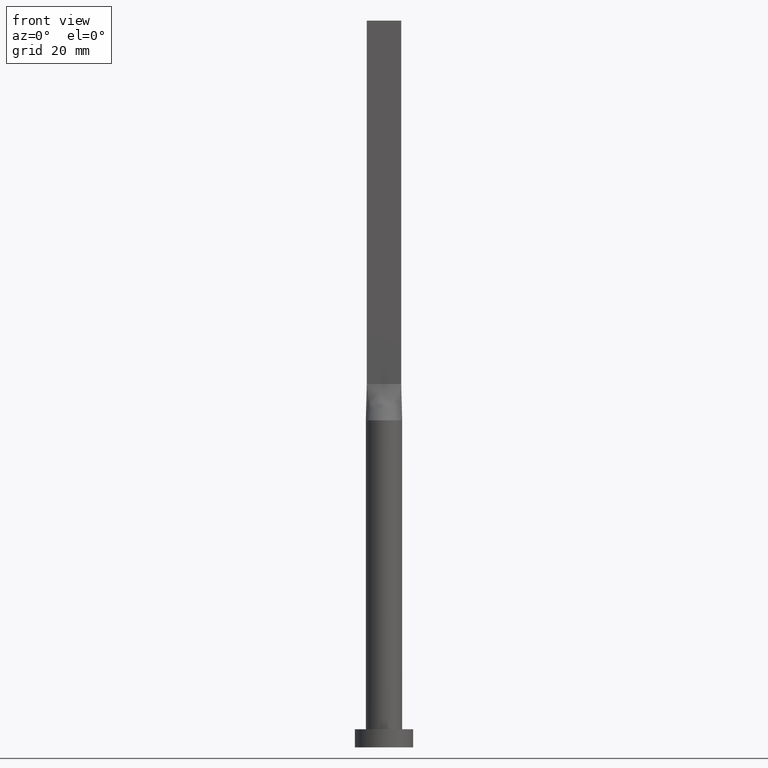
[diagram: clean part render]
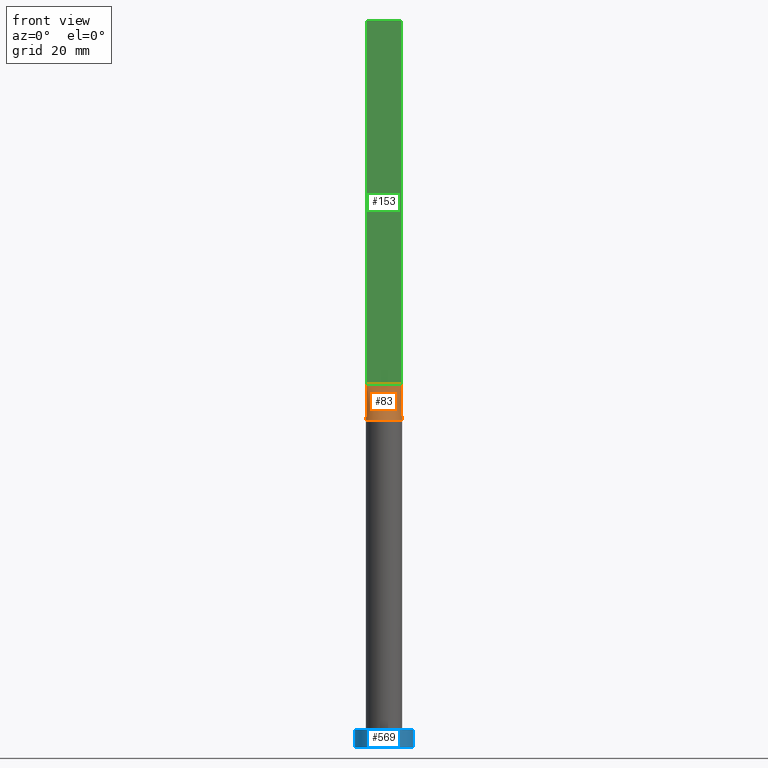
[diagram: same view with three faces highlighted in distinct colors, each labeled with its STEP entity id]
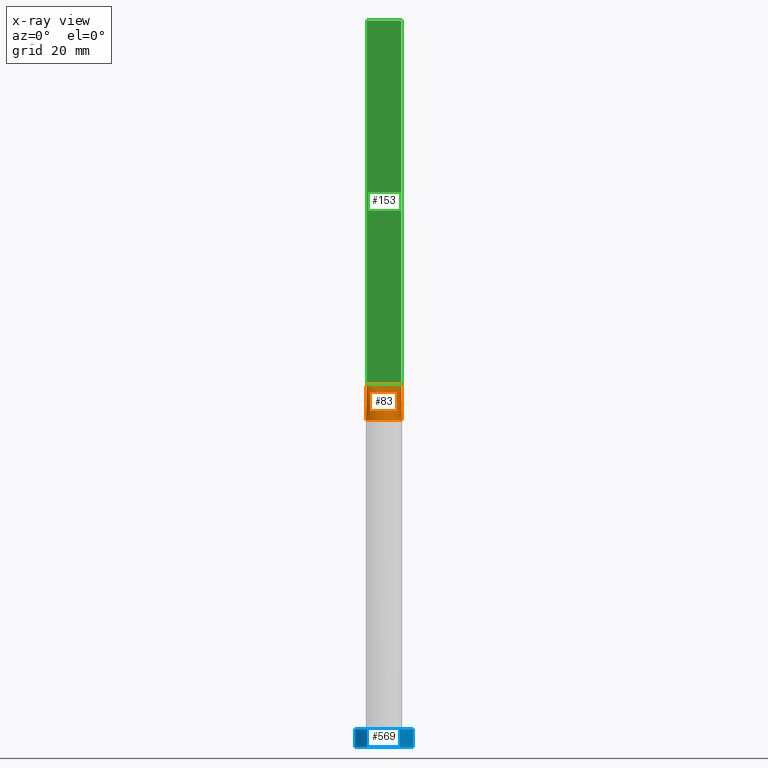
[diagram: x-ray of the same camera — body ghosted, the three highlighted faces saturated]
A machine part, front view with three faces highlighted in distinct colors.
The next image is the same camera in x-ray (body ghosted, the three faces saturated) — at least one of them is partly hidden behind the body in this view.
Their STEP definitions:

[orange] entity #83 — the highlighted face is a freeform B-spline surface patch.
#6 = CARTESIAN_POINT ( 'NONE',  ( -4.753727492665065668, -1.629988260829201119, 90.00000000000002842 ) ) ;
#10 = CARTESIAN_POINT ( 'NONE',  ( -0.3560391241594598188, -5.000000000000001776, 90.00000000000002842 ) ) ;
#12 = CARTESIAN_POINT ( 'NONE',  ( -3.404830936252120299, -3.673931880027065056, 90.00000000000002842 ) ) ;
#16 = CARTESIAN_POINT ( 'NONE',  ( -2.643217737595827010, -4.256483892511436551, 90.00000000000000000 ) ) ;
#17 = ORIENTED_EDGE ( 'NONE', *, *, #41, .T. ) ;
#29 = CARTESIAN_POINT ( 'NONE',  ( 4.753727492665065668, -1.629988260829203561, 90.00000000000004263 ) ) ;
#33 = VERTEX_POINT ( 'NONE', #446 ) ;
#35 = CARTESIAN_POINT ( 'NONE',  ( 3.166666666666673180, -0.7499999999999997780, 100.0000000000000000 ) ) ;
#38 = CARTESIAN_POINT ( 'NONE',  ( -4.938821632323166178, -0.7798139456827060112, 90.00000000000001421 ) ) ;
#41 = EDGE_CURVE ( 'NONE', #33, #248, #155, .T. ) ;
#48 = LINE ( 'NONE', #427, #591 ) ;
#53 = CARTESIAN_POINT ( 'NONE',  ( -4.938814826645345768, -0.7798128673650532861, 90.00000000000001421 ) ) ;
#56 = CARTESIAN_POINT ( 'NONE',  ( -0.7119876437238014111, -4.961551549233179870, 90.00000000000002842 ) ) ;
#58 = CARTESIAN_POINT ( 'NONE',  ( -4.874625637456154514, -1.186344398896584718, 90.00000000000004263 ) ) ;
#61 = CARTESIAN_POINT ( 'NONE',  ( 1.400150253878312157, -4.812847332616943419, 90.00000000000001421 ) ) ;
#67 = FACE_OUTER_BOUND ( 'NONE', #560, .T. ) ;
#69 = VERTEX_POINT ( 'NONE', #526 ) ;
#74 = CARTESIAN_POINT ( 'NONE',  ( 2.353781608410061121, -4.424438117685769889, 90.00000000000000000 ) ) ;
#75 = CIRCLE ( 'NONE', #193, 5.000000000000000000 ) ;
#83 = ADVANCED_FACE ( 'NONE', ( #67 ), #428, .T. ) ;
#86 = CARTESIAN_POINT ( 'NONE',  ( 4.874625637456156291, -1.186344398896586938, 90.00000000000001421 ) ) ;
#99 = LINE ( 'NONE', #508, #144 ) ;
#112 = CARTESIAN_POINT ( 'NONE',  ( 0.1979166666666740126, -0.7499999999999994449, 100.0000000000000000 ) ) ;
#116 = CARTESIAN_POINT ( 'NONE',  ( 4.844407413322673328, -0.7649064336825285304, 95.00000000000000000 ) ) ;
#129 = CARTESIAN_POINT ( 'NONE',  ( 2.177083333333341475, -0.7499999999999997780, 100.0000000000000000 ) ) ;
#144 = VECTOR ( 'NONE', #518, 1000.000000000000114 ) ;
#151 = CARTESIAN_POINT ( 'NONE',  ( -4.750000000000000000, -0.7499999999999991118, 100.0000000000000000 ) ) ;
#155 = LINE ( 'NONE', #116, #550 ) ;
#158 = CARTESIAN_POINT ( 'NONE',  ( -0.7916666666666584140, -0.7499999999999995559, 100.0000000000000000 ) ) ;
#160 = CARTESIAN_POINT ( 'NONE',  ( 1.732223102076449583, -4.702695359254404295, 90.00000000000000000 ) ) ;
#163 = CARTESIAN_POINT ( 'NONE',  ( -2.770833333333329040, -0.7499999999999994449, 100.0000000000000284 ) ) ;
#164 = ORIENTED_EDGE ( 'NONE', *, *, #223, .T. ) ;
#167 = CARTESIAN_POINT ( 'NONE',  ( 4.750000000000000000, -0.7499999999999997780, 100.0000000000000000 ) ) ;
#178 = CARTESIAN_POINT ( 'NONE',  ( 4.354166666666667851, -0.7499999999999997780, 100.0000000000000000 ) ) ;
#191 = EDGE_CURVE ( 'NONE', #229, #33, #75, .T. ) ;
#193 = AXIS2_PLACEMENT_3D ( 'NONE', #496, #257, #501 ) ;
#198 = DIRECTION ( 'NONE',  ( -0.01887803397728733332, 0.002980742206940388637, 0.9998173508241633423 ) ) ;
#200 = CARTESIAN_POINT ( 'NONE',  ( -0.1979166666666593299, -0.7499999999999994449, 100.0000000000000000 ) ) ;
#207 = CARTESIAN_POINT ( 'NONE',  ( -2.177083333333327708, -0.7499999999999995559, 100.0000000000000284 ) ) ;
#218 = EDGE_CURVE ( 'NONE', #69, #248, #48, .T. ) ;
#223 = EDGE_CURVE ( 'NONE', #69, #229, #99, .T. ) ;
#224 = CARTESIAN_POINT ( 'NONE',  ( 3.404830936252118967, -3.673931880027069496, 90.00000000000002842 ) ) ;
#229 = VERTEX_POINT ( 'NONE', #38 ) ;
#246 = CARTESIAN_POINT ( 'NONE',  ( -0.3958333333333254322, -0.7499999999999995559, 100.0000000000000000 ) ) ;
#248 = VERTEX_POINT ( 'NONE', #422 ) ;
#250 = CARTESIAN_POINT ( 'NONE',  ( -1.732223102076450250, -4.702695359254402518, 90.00000000000001421 ) ) ;
#255 = CARTESIAN_POINT ( 'NONE',  ( 2.643217737595827455, -4.256483892511438327, 90.00000000000001421 ) ) ;
#257 = DIRECTION ( 'NONE',  ( 0.000000000000000000, 0.000000000000000000, 1.000000000000000000 ) ) ;
#264 = CARTESIAN_POINT ( 'NONE',  ( 3.958333333333336146, -0.7499999999999997780, 100.0000000000000000 ) ) ;
#290 = CARTESIAN_POINT ( 'NONE',  ( -1.583333333333326376, -0.7499999999999995559, 100.0000000000000284 ) ) ;
#293 = CARTESIAN_POINT ( 'NONE',  ( -4.354166666666666075, -0.7499999999999992228, 100.0000000000000142 ) ) ;
#295 = CARTESIAN_POINT ( 'NONE',  ( 0.7119876437238003009, -4.961551549233181646, 90.00000000000001421 ) ) ;
#303 = CARTESIAN_POINT ( 'NONE',  ( -1.979166666666660745, -0.7499999999999995559, 100.0000000000000284 ) ) ;
#308 = CARTESIAN_POINT ( 'NONE',  ( 2.770833333333341031, -0.7499999999999997780, 100.0000000000000000 ) ) ;
#337 = CARTESIAN_POINT ( 'NONE',  ( -4.332026455536839293, -2.547220758687717801, 90.00000000000005684 ) ) ;
#343 = CARTESIAN_POINT ( 'NONE',  ( 0.3560391241594588196, -5.000000000000000888, 90.00000000000002842 ) ) ;
#345 = CARTESIAN_POINT ( 'NONE',  ( -3.958333333333332149, -0.7499999999999993339, 100.0000000000000142 ) ) ;
#353 = CARTESIAN_POINT ( 'NONE',  ( 4.938814826645345768, -0.7798128673650571718, 90.00000000000001421 ) ) ;
#393 = CARTESIAN_POINT ( 'NONE',  ( -2.353781608410061121, -4.424438117685769889, 89.99999999999998579 ) ) ;
#420 = ORIENTED_EDGE ( 'NONE', *, *, #191, .T. ) ;
#422 = CARTESIAN_POINT ( 'NONE',  ( 4.750000000000000000, -0.7499999999999997780, 100.0000000000000000 ) ) ;
#424 = DIRECTION ( 'NONE',  ( 1.000000000000000000, -6.847592668329501559E-17, 0.000000000000000000 ) ) ;
#427 = CARTESIAN_POINT ( 'NONE',  ( -4.750000000000000000, -0.7499999999999991118, 100.0000000000000000 ) ) ;
#428 = B_SPLINE_SURFACE_WITH_KNOTS ( 'NONE', 3, 1, ( 
 ( #53, #151 ),
 ( #58, #293 ),
 ( #6, #345 ),
 ( #337, #488 ),
 ( #485, #163 ),
 ( #12, #207 ),
 ( #531, #303 ),
 ( #16, #290 ),
 ( #393, #535 ),
 ( #250, #438 ),
 ( #583, #158 ),
 ( #56, #246 ),
 ( #10, #200 ),
 ( #343, #112 ),
 ( #295, #490 ),
 ( #61, #587 ),
 ( #160, #448 ),
 ( #74, #602 ),
 ( #255, #453 ),
 ( #463, #505 ),
 ( #224, #129 ),
 ( #609, #308 ),
 ( #606, #35 ),
 ( #29, #264 ),
 ( #86, #178 ),
 ( #353, #167 ) ),
 .UNSPECIFIED., .F., .F., .F.,
 ( 4, 2, 2, 2, 2, 2, 2, 2, 2, 2, 2, 2, 4 ),
 ( 2, 2 ),
 ( 0.000000000000000000, 0.1250000000000000278, 0.2500000000000001110, 0.3125000000000001665, 0.3750000000000002220, 0.4375000000000002220, 0.5000000000000002220, 0.5625000000000002220, 0.6250000000000002220, 0.6875000000000002220, 0.7500000000000003331, 0.8750000000000002220, 1.000000000000000000 ),
 ( 0.000000000000000000, 1.000000000000000000 ),
 .UNSPECIFIED. ) ;
#438 = CARTESIAN_POINT ( 'NONE',  ( -0.9895833333333253767, -0.7499999999999995559, 100.0000000000000142 ) ) ;
#446 = CARTESIAN_POINT ( 'NONE',  ( 4.938833698301754893, -0.7798158709413661738, 90.00000000000001421 ) ) ;
#448 = CARTESIAN_POINT ( 'NONE',  ( 0.9895833333333419191, -0.7499999999999996669, 100.0000000000000000 ) ) ;
#453 = CARTESIAN_POINT ( 'NONE',  ( 1.583333333333341475, -0.7499999999999997780, 100.0000000000000000 ) ) ;
#460 = ORIENTED_EDGE ( 'NONE', *, *, #218, .F. ) ;
#463 = CARTESIAN_POINT ( 'NONE',  ( 3.168723755431094080, -3.881165404529570484, 90.00000000000001421 ) ) ;
#485 = CARTESIAN_POINT ( 'NONE',  ( -4.029217956433126524, -3.021257902548482033, 90.00000000000001421 ) ) ;
#488 = CARTESIAN_POINT ( 'NONE',  ( -3.166666666666662966, -0.7499999999999993339, 100.0000000000000142 ) ) ;
#490 = CARTESIAN_POINT ( 'NONE',  ( 0.3958333333333413639, -0.7499999999999994449, 100.0000000000000000 ) ) ;
#496 = CARTESIAN_POINT ( 'NONE',  ( 0.000000000000000000, 0.000000000000000000, 90.00000000000001421 ) ) ;
#501 = DIRECTION ( 'NONE',  ( 1.000000000000000000, 0.000000000000000000, 0.000000000000000000 ) ) ;
#505 = CARTESIAN_POINT ( 'NONE',  ( 1.979166666666674734, -0.7499999999999997780, 100.0000000000000000 ) ) ;
#508 = CARTESIAN_POINT ( 'NONE',  ( -4.844407413322673328, -0.7649064336825261989, 95.00000000000000000 ) ) ;
#518 = DIRECTION ( 'NONE',  ( -0.01887803397728733332, -0.002980742206940063810, -0.9998173508241633423 ) ) ;
#526 = CARTESIAN_POINT ( 'NONE',  ( -4.750000000000000000, -0.7499999999999991118, 100.0000000000000000 ) ) ;
#531 = CARTESIAN_POINT ( 'NONE',  ( -3.168723755431094524, -3.881165404529569152, 90.00000000000000000 ) ) ;
#535 = CARTESIAN_POINT ( 'NONE',  ( -1.385416666666659413, -0.7499999999999995559, 100.0000000000000284 ) ) ;
#550 = VECTOR ( 'NONE', #198, 1000.000000000000114 ) ;
#560 = EDGE_LOOP ( 'NONE', ( #420, #17, #460, #164 ) ) ;
#583 = CARTESIAN_POINT ( 'NONE',  ( -1.400150253878313711, -4.812847332616943419, 90.00000000000004263 ) ) ;
#587 = CARTESIAN_POINT ( 'NONE',  ( 0.7916666666666752894, -0.7499999999999995559, 100.0000000000000000 ) ) ;
#591 = VECTOR ( 'NONE', #424, 1000.000000000000000 ) ;
#602 = CARTESIAN_POINT ( 'NONE',  ( 1.385416666666674956, -0.7499999999999997780, 100.0000000000000000 ) ) ;
#606 = CARTESIAN_POINT ( 'NONE',  ( 4.332026455536841070, -2.547220758687719577, 90.00000000000004263 ) ) ;
#609 = CARTESIAN_POINT ( 'NONE',  ( 4.029217956433124748, -3.021257902548483365, 90.00000000000002842 ) ) ;

[blue] entity #569 — the highlighted cylindrical surface (edge-blend (fillet) strip) has radius 8 mm, axis along (-0, -0, -1).
#3 = VECTOR ( 'NONE', #470, 1000.000000000000000 ) ;
#28 = CARTESIAN_POINT ( 'NONE',  ( -8.000000000000000000, 0.000000000000000000, 5.000000000000000000 ) ) ;
#31 = DIRECTION ( 'NONE',  ( 0.000000000000000000, 0.000000000000000000, 1.000000000000000000 ) ) ;
#36 = EDGE_LOOP ( 'NONE', ( #241, #306, #346, #259 ) ) ;
#79 = CARTESIAN_POINT ( 'NONE',  ( -8.000000000000000000, 0.000000000000000000, 5.000000000000000000 ) ) ;
#84 = VERTEX_POINT ( 'NONE', #261 ) ;
#117 = CIRCLE ( 'NONE', #225, 8.000000000000000000 ) ;
#120 = FACE_OUTER_BOUND ( 'NONE', #36, .T. ) ;
#122 = CARTESIAN_POINT ( 'NONE',  ( 8.000000000000000000, 9.797174393178825657E-16, 5.000000000000000000 ) ) ;
#127 = VERTEX_POINT ( 'NONE', #79 ) ;
#165 = CARTESIAN_POINT ( 'NONE',  ( 0.000000000000000000, 0.000000000000000000, 5.000000000000000000 ) ) ;
#180 = LINE ( 'NONE', #370, #3 ) ;
#203 = AXIS2_PLACEMENT_3D ( 'NONE', #165, #31, #310 ) ;
#216 = DIRECTION ( 'NONE',  ( -0.000000000000000000, -0.000000000000000000, -1.000000000000000000 ) ) ;
#219 = DIRECTION ( 'NONE',  ( -0.000000000000000000, -0.000000000000000000, -1.000000000000000000 ) ) ;
#222 = CARTESIAN_POINT ( 'NONE',  ( 0.000000000000000000, 0.000000000000000000, 5.000000000000000000 ) ) ;
#225 = AXIS2_PLACEMENT_3D ( 'NONE', #458, #451, #307 ) ;
#227 = CARTESIAN_POINT ( 'NONE',  ( 8.000000000000000000, 9.797174393178825657E-16, 0.000000000000000000 ) ) ;
#241 = ORIENTED_EDGE ( 'NONE', *, *, #600, .F. ) ;
#259 = ORIENTED_EDGE ( 'NONE', *, *, #429, .T. ) ;
#261 = CARTESIAN_POINT ( 'NONE',  ( -8.000000000000000000, 0.000000000000000000, 0.000000000000000000 ) ) ;
#306 = ORIENTED_EDGE ( 'NONE', *, *, #564, .F. ) ;
#307 = DIRECTION ( 'NONE',  ( 1.000000000000000000, 0.000000000000000000, 0.000000000000000000 ) ) ;
#310 = DIRECTION ( 'NONE',  ( 1.000000000000000000, 0.000000000000000000, 0.000000000000000000 ) ) ;
#346 = ORIENTED_EDGE ( 'NONE', *, *, #536, .T. ) ;
#348 = LINE ( 'NONE', #28, #415 ) ;
#352 = DIRECTION ( 'NONE',  ( -1.000000000000000000, 0.000000000000000000, 0.000000000000000000 ) ) ;
#361 = AXIS2_PLACEMENT_3D ( 'NONE', #222, #216, #352 ) ;
#370 = CARTESIAN_POINT ( 'NONE',  ( 8.000000000000000000, 9.797174393178825657E-16, 5.000000000000000000 ) ) ;
#415 = VECTOR ( 'NONE', #219, 1000.000000000000000 ) ;
#429 = EDGE_CURVE ( 'NONE', #84, #465, #117, .T. ) ;
#451 = DIRECTION ( 'NONE',  ( 0.000000000000000000, 0.000000000000000000, 1.000000000000000000 ) ) ;
#458 = CARTESIAN_POINT ( 'NONE',  ( 0.000000000000000000, 0.000000000000000000, 0.000000000000000000 ) ) ;
#465 = VERTEX_POINT ( 'NONE', #227 ) ;
#470 = DIRECTION ( 'NONE',  ( -0.000000000000000000, -0.000000000000000000, -1.000000000000000000 ) ) ;
#480 = VERTEX_POINT ( 'NONE', #122 ) ;
#536 = EDGE_CURVE ( 'NONE', #127, #84, #348, .T. ) ;
#537 = CIRCLE ( 'NONE', #203, 8.000000000000000000 ) ;
#551 = CYLINDRICAL_SURFACE ( 'NONE', #361, 8.000000000000000000 ) ;
#564 = EDGE_CURVE ( 'NONE', #127, #480, #537, .T. ) ;
#569 = ADVANCED_FACE ( 'NONE', ( #120 ), #551, .T. ) ;
#600 = EDGE_CURVE ( 'NONE', #480, #465, #180, .T. ) ;

[green] entity #153 — the highlighted planar face has unit normal (0, 1, -0).
#2 = ORIENTED_EDGE ( 'NONE', *, *, #196, .F. ) ;
#18 = EDGE_CURVE ( 'NONE', #87, #149, #441, .T. ) ;
#48 = LINE ( 'NONE', #427, #591 ) ;
#66 = VECTOR ( 'NONE', #357, 1000.000000000000000 ) ;
#69 = VERTEX_POINT ( 'NONE', #526 ) ;
#71 = FACE_OUTER_BOUND ( 'NONE', #482, .T. ) ;
#87 = VERTEX_POINT ( 'NONE', #314 ) ;
#133 = LINE ( 'NONE', #213, #66 ) ;
#149 = VERTEX_POINT ( 'NONE', #545 ) ;
#153 = ADVANCED_FACE ( 'NONE', ( #71 ), #367, .F. ) ;
#156 = EDGE_CURVE ( 'NONE', #87, #69, #133, .T. ) ;
#196 = EDGE_CURVE ( 'NONE', #149, #248, #217, .T. ) ;
#208 = ORIENTED_EDGE ( 'NONE', *, *, #218, .T. ) ;
#213 = CARTESIAN_POINT ( 'NONE',  ( -4.750000000000000000, -0.7499999999999991118, 200.0000000000000000 ) ) ;
#217 = LINE ( 'NONE', #455, #570 ) ;
#218 = EDGE_CURVE ( 'NONE', #69, #248, #48, .T. ) ;
#248 = VERTEX_POINT ( 'NONE', #422 ) ;
#314 = CARTESIAN_POINT ( 'NONE',  ( -4.750000000000000000, -0.7499999999999991118, 200.0000000000000000 ) ) ;
#332 = AXIS2_PLACEMENT_3D ( 'NONE', #364, #414, #555 ) ;
#357 = DIRECTION ( 'NONE',  ( -0.000000000000000000, -0.000000000000000000, -1.000000000000000000 ) ) ;
#364 = CARTESIAN_POINT ( 'NONE',  ( -4.750000000000000000, -0.7499999999999991118, 200.0000000000000000 ) ) ;
#367 = PLANE ( 'NONE',  #332 ) ;
#394 = VECTOR ( 'NONE', #539, 1000.000000000000000 ) ;
#397 = CARTESIAN_POINT ( 'NONE',  ( -4.750000000000000000, -0.7499999999999991118, 200.0000000000000000 ) ) ;
#408 = DIRECTION ( 'NONE',  ( -0.000000000000000000, -0.000000000000000000, -1.000000000000000000 ) ) ;
#414 = DIRECTION ( 'NONE',  ( 6.847592668329501559E-17, 1.000000000000000000, -0.000000000000000000 ) ) ;
#422 = CARTESIAN_POINT ( 'NONE',  ( 4.750000000000000000, -0.7499999999999997780, 100.0000000000000000 ) ) ;
#424 = DIRECTION ( 'NONE',  ( 1.000000000000000000, -6.847592668329501559E-17, 0.000000000000000000 ) ) ;
#427 = CARTESIAN_POINT ( 'NONE',  ( -4.750000000000000000, -0.7499999999999991118, 100.0000000000000000 ) ) ;
#441 = LINE ( 'NONE', #397, #394 ) ;
#455 = CARTESIAN_POINT ( 'NONE',  ( 4.750000000000000000, -0.7499999999999997780, 200.0000000000000000 ) ) ;
#482 = EDGE_LOOP ( 'NONE', ( #208, #2, #542, #613 ) ) ;
#526 = CARTESIAN_POINT ( 'NONE',  ( -4.750000000000000000, -0.7499999999999991118, 100.0000000000000000 ) ) ;
#539 = DIRECTION ( 'NONE',  ( 1.000000000000000000, -6.847592668329501559E-17, 0.000000000000000000 ) ) ;
#542 = ORIENTED_EDGE ( 'NONE', *, *, #18, .F. ) ;
#545 = CARTESIAN_POINT ( 'NONE',  ( 4.750000000000000000, -0.7499999999999997780, 200.0000000000000000 ) ) ;
#555 = DIRECTION ( 'NONE',  ( -1.000000000000000000, 6.847592668329501559E-17, 0.000000000000000000 ) ) ;
#570 = VECTOR ( 'NONE', #408, 1000.000000000000000 ) ;
#591 = VECTOR ( 'NONE', #424, 1000.000000000000000 ) ;
#613 = ORIENTED_EDGE ( 'NONE', *, *, #156, .T. ) ;